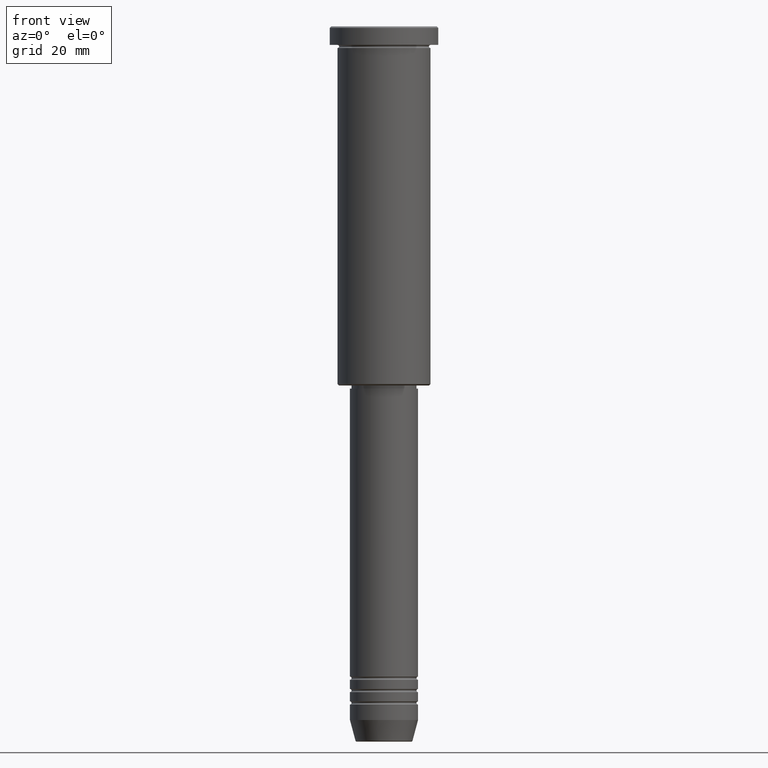
[diagram: clean part render]
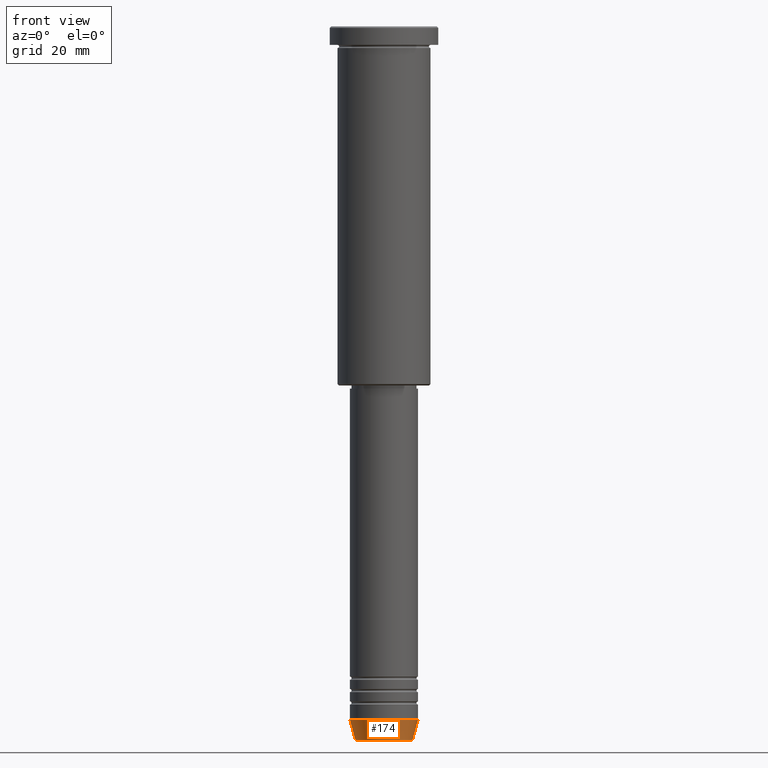
[diagram: same view with one face highlighted and labeled with its STEP entity id]
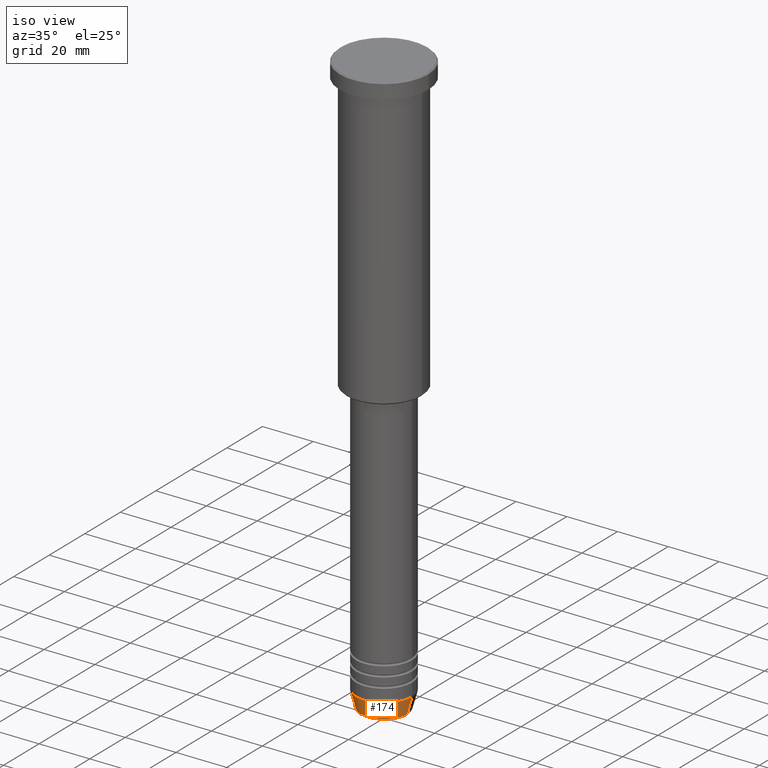
[diagram: same view with one face highlighted and labeled with its STEP entity id]
A machine part, front view. The second image highlights one B-rep face of the part: STEP entity #174.
A second angle (iso view) of the same face is appended — the face is thin or edge-on in the first view.
In plain terms, the highlighted conical surface has half-angle 15 deg.
Its self-contained STEP definition (entity closure, byte-faithful):
#46 = CARTESIAN_POINT ( 'NONE',  ( 0.000000000000000000, 0.000000000000000000, -224.0000000000000284 ) ) ;
#110 = VERTEX_POINT ( 'NONE', #745 ) ;
#147 = CARTESIAN_POINT ( 'NONE',  ( -11.00000000000000000, 1.347111479062088405E-15, -224.0000000000000284 ) ) ;
#174 = ADVANCED_FACE ( 'NONE', ( #388 ), #440, .T. ) ;
#208 = DIRECTION ( 'NONE',  ( -0.000000000000000000, -0.000000000000000000, 1.000000000000000000 ) ) ;
#240 = VERTEX_POINT ( 'NONE', #953 ) ;
#245 = CARTESIAN_POINT ( 'NONE',  ( 0.000000000000000000, 0.000000000000000000, -224.0000000000000284 ) ) ;
#319 = VERTEX_POINT ( 'NONE', #603 ) ;
#320 = CARTESIAN_POINT ( 'NONE',  ( 0.000000000000000000, 0.000000000000000000, -230.6294095225512990 ) ) ;
#377 = VECTOR ( 'NONE', #752, 1000.000000000000000 ) ;
#378 = CARTESIAN_POINT ( 'NONE',  ( 11.00000000000000000, 0.000000000000000000, -224.0000000000000284 ) ) ;
#388 = FACE_OUTER_BOUND ( 'NONE', #844, .T. ) ;
#440 = CONICAL_SURFACE ( 'NONE', #800, 11.00000000000000000, 0.2617993877991500740 ) ;
#478 = AXIS2_PLACEMENT_3D ( 'NONE', #320, #1168, #612 ) ;
#507 = DIRECTION ( 'NONE',  ( -0.2588190451025213501, 3.169619151431772337E-17, 0.9659258262890680902 ) ) ;
#514 = LINE ( 'NONE', #147, #819 ) ;
#521 = DIRECTION ( 'NONE',  ( -0.000000000000000000, -0.000000000000000000, 1.000000000000000000 ) ) ;
#603 = CARTESIAN_POINT ( 'NONE',  ( -9.223655072137189492, 1.238341722557647202E-15, -230.6294095225512990 ) ) ;
#612 = DIRECTION ( 'NONE',  ( 1.000000000000000000, 0.000000000000000000, 0.000000000000000000 ) ) ;
#637 = CARTESIAN_POINT ( 'NONE',  ( 11.00000000000000000, 0.000000000000000000, -224.0000000000000284 ) ) ;
#642 = CIRCLE ( 'NONE', #478, 9.223655072137189492 ) ;
#686 = EDGE_CURVE ( 'NONE', #319, #110, #514, .T. ) ;
#720 = ORIENTED_EDGE ( 'NONE', *, *, #758, .T. ) ;
#745 = CARTESIAN_POINT ( 'NONE',  ( -11.00000000000000000, 1.347111479062088405E-15, -224.0000000000000284 ) ) ;
#748 = LINE ( 'NONE', #637, #377 ) ;
#752 = DIRECTION ( 'NONE',  ( 0.2588190451025213501, 0.000000000000000000, 0.9659258262890680902 ) ) ;
#758 = EDGE_CURVE ( 'NONE', #240, #927, #748, .T. ) ;
#775 = ORIENTED_EDGE ( 'NONE', *, *, #945, .F. ) ;
#800 = AXIS2_PLACEMENT_3D ( 'NONE', #46, #208, #1059 ) ;
#802 = CIRCLE ( 'NONE', #976, 11.00000000000000000 ) ;
#819 = VECTOR ( 'NONE', #507, 1000.000000000000000 ) ;
#844 = EDGE_LOOP ( 'NONE', ( #1154, #1142, #720, #775 ) ) ;
#927 = VERTEX_POINT ( 'NONE', #378 ) ;
#936 = EDGE_CURVE ( 'NONE', #319, #240, #642, .T. ) ;
#945 = EDGE_CURVE ( 'NONE', #110, #927, #802, .T. ) ;
#953 = CARTESIAN_POINT ( 'NONE',  ( 9.223655072137189492, 0.000000000000000000, -230.6294095225512990 ) ) ;
#976 = AXIS2_PLACEMENT_3D ( 'NONE', #245, #521, #977 ) ;
#977 = DIRECTION ( 'NONE',  ( 1.000000000000000000, 0.000000000000000000, 0.000000000000000000 ) ) ;
#1059 = DIRECTION ( 'NONE',  ( 1.000000000000000000, 0.000000000000000000, 0.000000000000000000 ) ) ;
#1142 = ORIENTED_EDGE ( 'NONE', *, *, #936, .T. ) ;
#1154 = ORIENTED_EDGE ( 'NONE', *, *, #686, .F. ) ;
#1168 = DIRECTION ( 'NONE',  ( -0.000000000000000000, -0.000000000000000000, 1.000000000000000000 ) ) ;